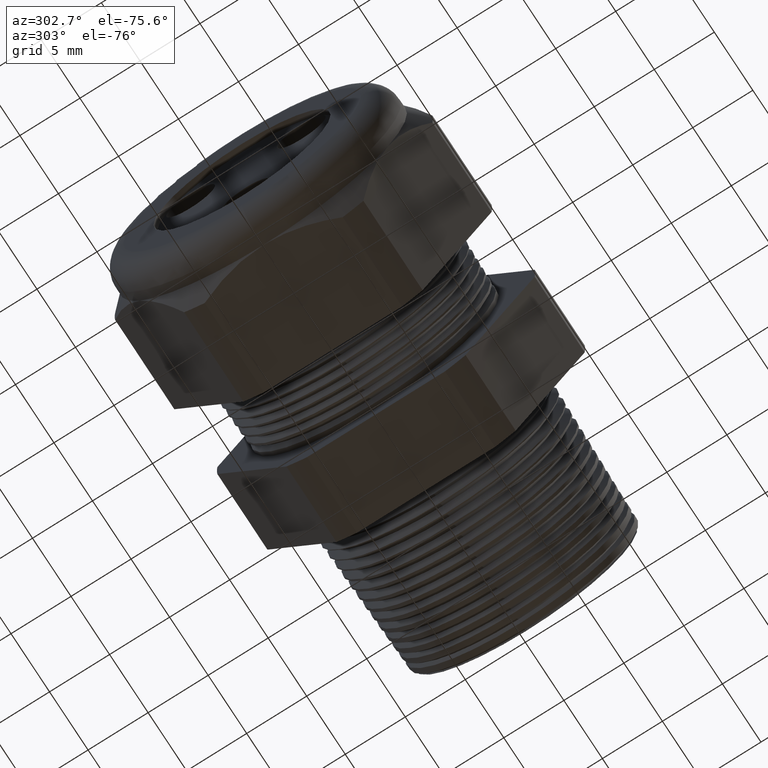
[diagram: clean part render]
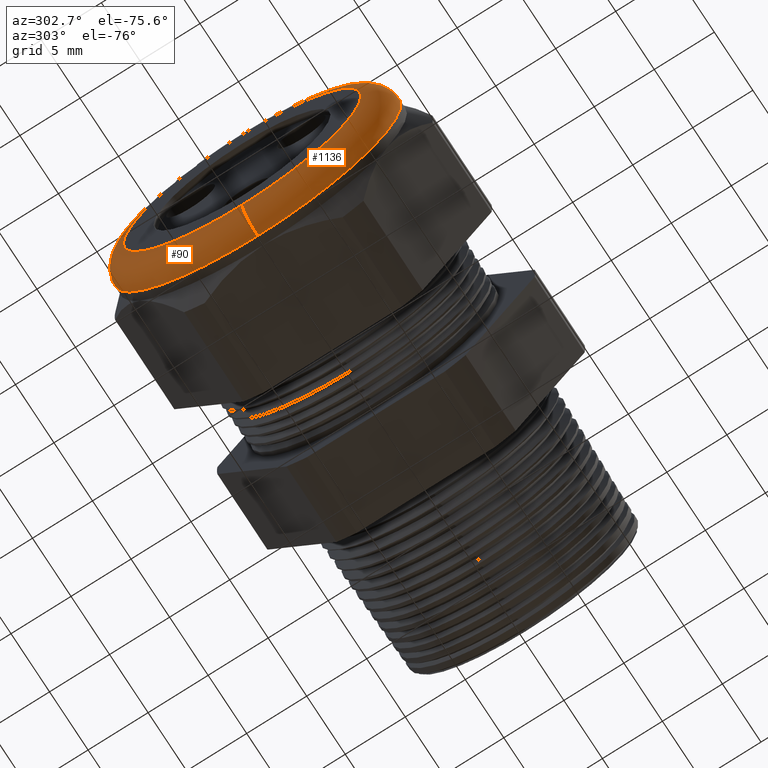
[diagram: same view with one multi-face feature highlighted, each face labeled with its STEP entity id]
A machine part, auxiliary view. The highlighted faces form ONE feature: a constant-radius fillet chain: 2 tangent blend faces with common blend radius 2.032 mm. The faces share edges in the B-rep.
Their STEP definitions:
[1] entity #1136 (Torus):
#78 = VERTEX_POINT ( 'NONE', #1943 ) ;
#87 = VERTEX_POINT ( 'NONE', #1925 ) ;
#88 = VERTEX_POINT ( 'NONE', #1924 ) ;
#93 = EDGE_CURVE ( 'NONE', #87, #78, #1916, .T. ) ;
#119 = EDGE_CURVE ( 'NONE', #88, #120, #2000, .T. ) ;
#120 = VERTEX_POINT ( 'NONE', #1995 ) ;
#192 = EDGE_CURVE ( 'NONE', #88, #87, #2130, .T. ) ;
#314 = EDGE_CURVE ( 'NONE', #78, #120, #2418, .T. ) ;
#1136 = ADVANCED_FACE ( 'NONE', ( #3939 ), #3938, .T. ) ;
#1137 = EDGE_LOOP ( 'NONE', ( #1138, #1189, #1190, #1191 ) ) ;
#1138 = ORIENTED_EDGE ( 'NONE', *, *, #93, .F. ) ;
#1189 = ORIENTED_EDGE ( 'NONE', *, *, #192, .F. ) ;
#1190 = ORIENTED_EDGE ( 'NONE', *, *, #119, .T. ) ;
#1191 = ORIENTED_EDGE ( 'NONE', *, *, #314, .F. ) ;
#1913 = DIRECTION ( 'NONE',  ( 0.0000000000000000000, -1.224646799147353900E-016, 1.000000000000000000 ) ) ;
#1914 = DIRECTION ( 'NONE',  ( 0.0000000000000000000, 1.000000000000000000, 1.224646799147353200E-016 ) ) ;
#1915 = AXIS2_PLACEMENT_3D ( 'NONE', #1921, #1914, #1913 ) ;
#1916 = CIRCLE ( 'NONE', #1915, 0.07999999999999996000 ) ;
#1921 = CARTESIAN_POINT ( 'NONE',  ( -1.169999999999999700, 4.776122516674676800E-017, -0.3899999999999999600 ) ) ;
#1924 = CARTESIAN_POINT ( 'NONE',  ( -1.169999999999999700, 5.755839955992558400E-017, 0.4699999999999999200 ) ) ;
#1925 = CARTESIAN_POINT ( 'NONE',  ( -1.169999999999999700, 0.0000000000000000000, -0.4699999999999999200 ) ) ;
#1943 = CARTESIAN_POINT ( 'NONE',  ( -1.249999999999999800, 5.265981236333617600E-017, -0.3899999999999999600 ) ) ;
#1995 = CARTESIAN_POINT ( 'NONE',  ( -1.249999999999999800, 0.0000000000000000000, 0.3899999999999999600 ) ) ;
#1996 = DIRECTION ( 'NONE',  ( 0.0000000000000000000, 0.0000000000000000000, -1.000000000000000000 ) ) ;
#1997 = DIRECTION ( 'NONE',  ( 0.0000000000000000000, -1.000000000000000000, 0.0000000000000000000 ) ) ;
#1998 = CARTESIAN_POINT ( 'NONE',  ( -1.169999999999999700, 0.0000000000000000000, 0.3899999999999999600 ) ) ;
#1999 = AXIS2_PLACEMENT_3D ( 'NONE', #1998, #1997, #1996 ) ;
#2000 = CIRCLE ( 'NONE', #1999, 0.07999999999999996000 ) ;
#2126 = DIRECTION ( 'NONE',  ( 0.0000000000000000000, 0.0000000000000000000, 1.000000000000000000 ) ) ;
#2127 = DIRECTION ( 'NONE',  ( 1.000000000000000000, 0.0000000000000000000, 0.0000000000000000000 ) ) ;
#2128 = CARTESIAN_POINT ( 'NONE',  ( -1.169999999999999700, 0.0000000000000000000, 0.0000000000000000000 ) ) ;
#2129 = AXIS2_PLACEMENT_3D ( 'NONE', #2128, #2127, #2126 ) ;
#2130 = CIRCLE ( 'NONE', #2129, 0.4699999999999999200 ) ;
#2414 = DIRECTION ( 'NONE',  ( 0.0000000000000000000, 0.0000000000000000000, 1.000000000000000000 ) ) ;
#2415 = DIRECTION ( 'NONE',  ( -1.000000000000000000, 0.0000000000000000000, 0.0000000000000000000 ) ) ;
#2416 = CARTESIAN_POINT ( 'NONE',  ( -1.249999999999999800, 0.0000000000000000000, 0.0000000000000000000 ) ) ;
#2417 = AXIS2_PLACEMENT_3D ( 'NONE', #2416, #2415, #2414 ) ;
#2418 = CIRCLE ( 'NONE', #2417, 0.3899999999999999600 ) ;
#3933 = DIRECTION ( 'NONE',  ( 0.0000000000000000000, 0.0000000000000000000, 1.000000000000000000 ) ) ;
#3934 = DIRECTION ( 'NONE',  ( -1.000000000000000000, 0.0000000000000000000, 0.0000000000000000000 ) ) ;
#3935 = CARTESIAN_POINT ( 'NONE',  ( -1.169999999999999700, 0.0000000000000000000, 0.0000000000000000000 ) ) ;
#3936 = AXIS2_PLACEMENT_3D ( 'NONE', #3935, #3934, #3933 ) ;
#3938 = TOROIDAL_SURFACE ( 'NONE', #3936, 0.3899999999999999600, 0.08000000000000000200 ) ;
#3939 = FACE_OUTER_BOUND ( 'NONE', #1137, .T. ) ;
[2] entity #90 (Torus):
#78 = VERTEX_POINT ( 'NONE', #1943 ) ;
#86 = EDGE_CURVE ( 'NONE', #87, #88, #1930, .T. ) ;
#87 = VERTEX_POINT ( 'NONE', #1925 ) ;
#88 = VERTEX_POINT ( 'NONE', #1924 ) ;
#89 = ORIENTED_EDGE ( 'NONE', *, *, #93, .T. ) ;
#90 = ADVANCED_FACE ( 'NONE', ( #1923 ), #1920, .T. ) ;
#91 = EDGE_LOOP ( 'NONE', ( #92, #89, #115, #114 ) ) ;
#92 = ORIENTED_EDGE ( 'NONE', *, *, #86, .F. ) ;
#93 = EDGE_CURVE ( 'NONE', #87, #78, #1916, .T. ) ;
#114 = ORIENTED_EDGE ( 'NONE', *, *, #119, .F. ) ;
#115 = ORIENTED_EDGE ( 'NONE', *, *, #117, .F. ) ;
#117 = EDGE_CURVE ( 'NONE', #120, #78, #2005, .T. ) ;
#119 = EDGE_CURVE ( 'NONE', #88, #120, #2000, .T. ) ;
#120 = VERTEX_POINT ( 'NONE', #1995 ) ;
#1913 = DIRECTION ( 'NONE',  ( 0.0000000000000000000, -1.224646799147353900E-016, 1.000000000000000000 ) ) ;
#1914 = DIRECTION ( 'NONE',  ( 0.0000000000000000000, 1.000000000000000000, 1.224646799147353200E-016 ) ) ;
#1915 = AXIS2_PLACEMENT_3D ( 'NONE', #1921, #1914, #1913 ) ;
#1916 = CIRCLE ( 'NONE', #1915, 0.07999999999999996000 ) ;
#1917 = DIRECTION ( 'NONE',  ( 0.0000000000000000000, 0.0000000000000000000, 1.000000000000000000 ) ) ;
#1918 = DIRECTION ( 'NONE',  ( -1.000000000000000000, 0.0000000000000000000, 0.0000000000000000000 ) ) ;
#1919 = AXIS2_PLACEMENT_3D ( 'NONE', #1922, #1918, #1917 ) ;
#1920 = TOROIDAL_SURFACE ( 'NONE', #1919, 0.3899999999999999600, 0.08000000000000000200 ) ;
#1921 = CARTESIAN_POINT ( 'NONE',  ( -1.169999999999999700, 4.776122516674676800E-017, -0.3899999999999999600 ) ) ;
#1922 = CARTESIAN_POINT ( 'NONE',  ( -1.169999999999999700, 0.0000000000000000000, 0.0000000000000000000 ) ) ;
#1923 = FACE_OUTER_BOUND ( 'NONE', #91, .T. ) ;
#1924 = CARTESIAN_POINT ( 'NONE',  ( -1.169999999999999700, 5.755839955992558400E-017, 0.4699999999999999200 ) ) ;
#1925 = CARTESIAN_POINT ( 'NONE',  ( -1.169999999999999700, 0.0000000000000000000, -0.4699999999999999200 ) ) ;
#1926 = DIRECTION ( 'NONE',  ( 0.0000000000000000000, 0.0000000000000000000, 1.000000000000000000 ) ) ;
#1927 = DIRECTION ( 'NONE',  ( 1.000000000000000000, 0.0000000000000000000, 0.0000000000000000000 ) ) ;
#1928 = CARTESIAN_POINT ( 'NONE',  ( -1.169999999999999700, 0.0000000000000000000, 0.0000000000000000000 ) ) ;
#1929 = AXIS2_PLACEMENT_3D ( 'NONE', #1928, #1927, #1926 ) ;
#1930 = CIRCLE ( 'NONE', #1929, 0.4699999999999999200 ) ;
#1943 = CARTESIAN_POINT ( 'NONE',  ( -1.249999999999999800, 5.265981236333617600E-017, -0.3899999999999999600 ) ) ;
#1995 = CARTESIAN_POINT ( 'NONE',  ( -1.249999999999999800, 0.0000000000000000000, 0.3899999999999999600 ) ) ;
#1996 = DIRECTION ( 'NONE',  ( 0.0000000000000000000, 0.0000000000000000000, -1.000000000000000000 ) ) ;
#1997 = DIRECTION ( 'NONE',  ( 0.0000000000000000000, -1.000000000000000000, 0.0000000000000000000 ) ) ;
#1998 = CARTESIAN_POINT ( 'NONE',  ( -1.169999999999999700, 0.0000000000000000000, 0.3899999999999999600 ) ) ;
#1999 = AXIS2_PLACEMENT_3D ( 'NONE', #1998, #1997, #1996 ) ;
#2000 = CIRCLE ( 'NONE', #1999, 0.07999999999999996000 ) ;
#2001 = DIRECTION ( 'NONE',  ( 0.0000000000000000000, 0.0000000000000000000, 1.000000000000000000 ) ) ;
#2002 = DIRECTION ( 'NONE',  ( -1.000000000000000000, 0.0000000000000000000, 0.0000000000000000000 ) ) ;
#2003 = CARTESIAN_POINT ( 'NONE',  ( -1.249999999999999800, 0.0000000000000000000, 0.0000000000000000000 ) ) ;
#2004 = AXIS2_PLACEMENT_3D ( 'NONE', #2003, #2002, #2001 ) ;
#2005 = CIRCLE ( 'NONE', #2004, 0.3899999999999999600 ) ;